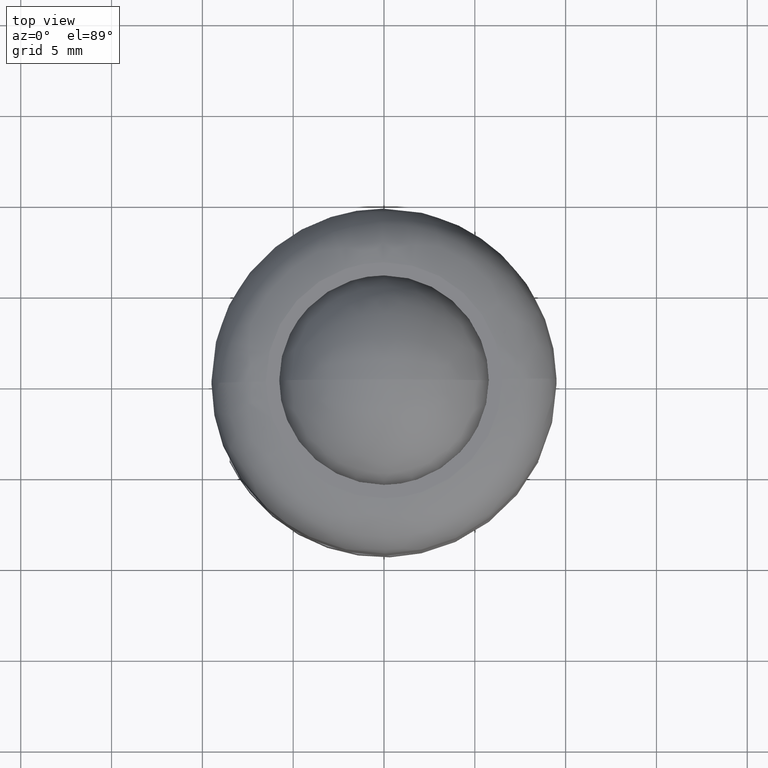
[diagram: clean part render]
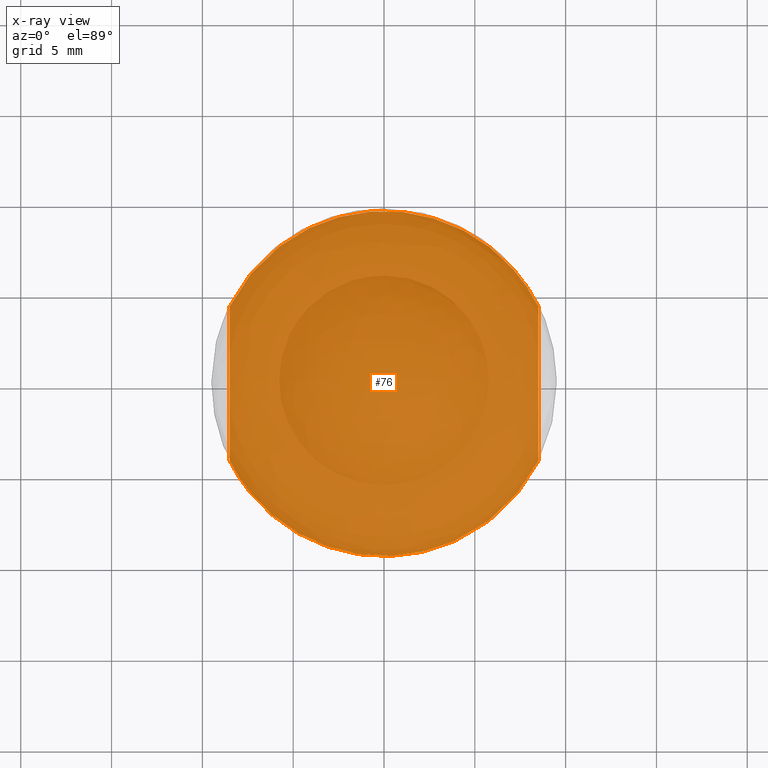
[diagram: x-ray — body ghosted, one internal face saturated and labeled with its STEP entity id]
A machine part, top view, then the same camera in x-ray: the body is ghosted and one INTERNAL B-rep face — a face not visible from any outside direction — is saturated and labeled: STEP entity #76.
In plain terms, the highlighted face is a freeform B-spline surface patch.
Its self-contained STEP definition (entity closure, byte-faithful):
#5=CARTESIAN_POINT('',(-9.349149967050693,-10.449069693075920,0.0));
#6=CARTESIAN_POINT('',(9.349150423026057,-10.449069693075920,0.0));
#7=CARTESIAN_POINT('',(-9.349149967050693,10.449049987780430,0.0));
#8=CARTESIAN_POINT('',(9.349150423026057,10.449049987780430,0.0));
#9=B_SPLINE_SURFACE_WITH_KNOTS('',1,1,((#5,#7),(#6,#8)),.UNSPECIFIED.,.F.,.F.,.U.,(2,2),(2,2),(0.0,18.698300390076749),(0.0,20.898119680856340),.UNSPECIFIED.);
#10=CARTESIAN_POINT('',(8.499999999999831,-4.242640687119274,0.0));
#11=VERTEX_POINT('',#10);
#12=CARTESIAN_POINT('',(8.499999999999831,4.242640687119325,0.0));
#13=VERTEX_POINT('',#12);
#14=CARTESIAN_POINT('',(8.499999999999831,-4.242640687119274,0.0));
#15=CARTESIAN_POINT('',(8.499999999999831,4.242640687119325,0.0));
#16=QUASI_UNIFORM_CURVE('',1,(#14,#15),.UNSPECIFIED.,.F.,.U.);
#17=EDGE_CURVE('',#11,#13,#16,.T.);
#18=ORIENTED_EDGE('',*,*,#17,.T.);
#19=CARTESIAN_POINT('',(-8.500000000000000,4.242640687119344,0.0));
#20=VERTEX_POINT('',#19);
#21=CARTESIAN_POINT('',(-8.500000000000000,4.242640687119344,0.0));
#22=CARTESIAN_POINT('',(-8.328649233406791,4.585953409668468,0.0));
#23=CARTESIAN_POINT('',(-7.916823382487306,5.299355776677777,0.0));
#24=CARTESIAN_POINT('',(-7.215425672410000,6.215578895392965,0.0));
#25=CARTESIAN_POINT('',(-6.332490728583933,7.117926216040657,0.0));
#26=CARTESIAN_POINT('',(-5.424936234937334,7.831694752801587,0.0));
#27=CARTESIAN_POINT('',(-4.387082228905124,8.449012568553002,0.0));
#28=CARTESIAN_POINT('',(-3.285972308429383,8.946190046408900,0.0));
#29=CARTESIAN_POINT('',(-2.125378826023881,9.286984928659445,0.0));
#30=CARTESIAN_POINT('',(-0.878218098565112,9.482849638490876,0.0));
#31=CARTESIAN_POINT('',(0.357335467791040,9.525667016997460,0.0));
#32=CARTESIAN_POINT('',(1.586776376540590,9.392119806501244,0.0));
#33=CARTESIAN_POINT('',(2.734815188586002,9.118836911523182,0.0));
#34=CARTESIAN_POINT('',(3.742138752672749,8.755470196493635,0.0));
#35=CARTESIAN_POINT('',(4.749116780644874,8.252744411115785,0.0));
#36=CARTESIAN_POINT('',(5.598976062662770,7.696074159796649,0.0));
#37=CARTESIAN_POINT('',(6.449646471511026,7.002893647398852,0.0));
#38=CARTESIAN_POINT('',(7.179794375561681,6.256709007487805,0.0));
#39=CARTESIAN_POINT('',(7.913811987839380,5.297848051693670,0.0));
#40=CARTESIAN_POINT('',(8.304179069299476,4.635007107471465,0.0));
#41=CARTESIAN_POINT('',(8.499999999999831,4.242640687119325,0.0));
#42=B_SPLINE_CURVE_WITH_KNOTS('',3,(#21,#22,#23,#24,#25,#26,#27,#28,#29,#30,#31,#32,#33,#34,#35,#36,#37,#38,#39,#40,#41),.UNSPECIFIED.,.F.,.U.,(4,1,1,1,1,1,1,1,1,1,1,1,1,1,1,1,1,1,4),(0.000000011583953,1.151099781364817,2.466685672435002,3.453351746246089,4.933371382124989,5.920048910269930,7.071177127669976,8.551183238801990,9.537865620928859,10.853414456107410,12.251204390465359,13.237870136265620,14.389002869199100,15.457899153024050,16.609023693702071,17.431258058230039,18.746820183081731,19.733503519129421,21.049056074928469),.UNSPECIFIED.);
#43=EDGE_CURVE('',#20,#13,#42,.T.);
#44=ORIENTED_EDGE('',*,*,#43,.F.);
#45=CARTESIAN_POINT('',(-8.500000000000000,-4.242640687119335,0.0));
#46=VERTEX_POINT('',#45);
#47=CARTESIAN_POINT('',(-8.500000000000000,4.242640687119344,0.0));
#48=CARTESIAN_POINT('',(-8.500000000000000,-4.242640687119335,0.0));
#49=QUASI_UNIFORM_CURVE('',1,(#47,#48),.UNSPECIFIED.,.F.,.U.);
#50=EDGE_CURVE('',#20,#46,#49,.T.);
#51=ORIENTED_EDGE('',*,*,#50,.T.);
#52=CARTESIAN_POINT('',(8.499999999999831,-4.242640687119274,0.0));
#53=CARTESIAN_POINT('',(8.304176926162263,-4.635003108968938,0.0));
#54=CARTESIAN_POINT('',(7.858053793629422,-5.392541625076806,0.0));
#55=CARTESIAN_POINT('',(6.970189941272983,-6.511759714113687,0.0));
#56=CARTESIAN_POINT('',(5.958421785423314,-7.443626390718533,0.0));
#57=CARTESIAN_POINT('',(4.777730568034984,-8.246523419652446,0.0));
#58=CARTESIAN_POINT('',(3.643883592059711,-8.806464245853549,0.0));
#59=CARTESIAN_POINT('',(2.236533621170059,-9.273255604988169,0.0));
#60=CARTESIAN_POINT('',(0.932849035472549,-9.489596613302750,0.0));
#61=CARTESIAN_POINT('',(-0.466622040539474,-9.513772807966916,0.0));
#62=CARTESIAN_POINT('',(-1.641417766836344,-9.386189768521263,0.0));
#63=CARTESIAN_POINT('',(-3.000863979043311,-9.050156159142622,0.0));
#64=CARTESIAN_POINT('',(-4.247912512749843,-8.538322174455363,0.0));
#65=CARTESIAN_POINT('',(-5.401561906280961,-7.845276856134959,0.0));
#66=CARTESIAN_POINT('',(-6.286450108495229,-7.149332078708057,0.0));
#67=CARTESIAN_POINT('',(-7.067690680989191,-6.378101739478138,0.0));
#68=CARTESIAN_POINT('',(-7.826735631769542,-5.438175123769090,0.0));
#69=CARTESIAN_POINT('',(-8.279709769348063,-4.684058815114104,0.0));
#70=CARTESIAN_POINT('',(-8.500000000000000,-4.242640687119335,0.0));
#71=B_SPLINE_CURVE_WITH_KNOTS('',3,(#52,#53,#54,#55,#56,#57,#58,#59,#60,#61,#62,#63,#64,#65,#66,#67,#68,#69,#70),.UNSPECIFIED.,.F.,.U.,(4,1,1,1,1,1,1,1,1,1,1,1,1,1,1,1,4),(0.000000011578550,1.315545837090703,2.631127594099734,4.275588571896993,5.426711054614930,6.906730344830370,8.057846734443340,9.866756494294215,10.853414456105581,12.251204390463810,13.402316517696770,15.046782887120161,16.280129771483988,17.431258058229719,18.417925418151491,19.569056985721680,21.049056074928391),.UNSPECIFIED.);
#72=EDGE_CURVE('',#11,#46,#71,.T.);
#73=ORIENTED_EDGE('',*,*,#72,.F.);
#74=EDGE_LOOP('',(#18,#44,#51,#73));
#75=FACE_OUTER_BOUND('',#74,.T.);
#76=ADVANCED_FACE('',(#75),#9,.T.);